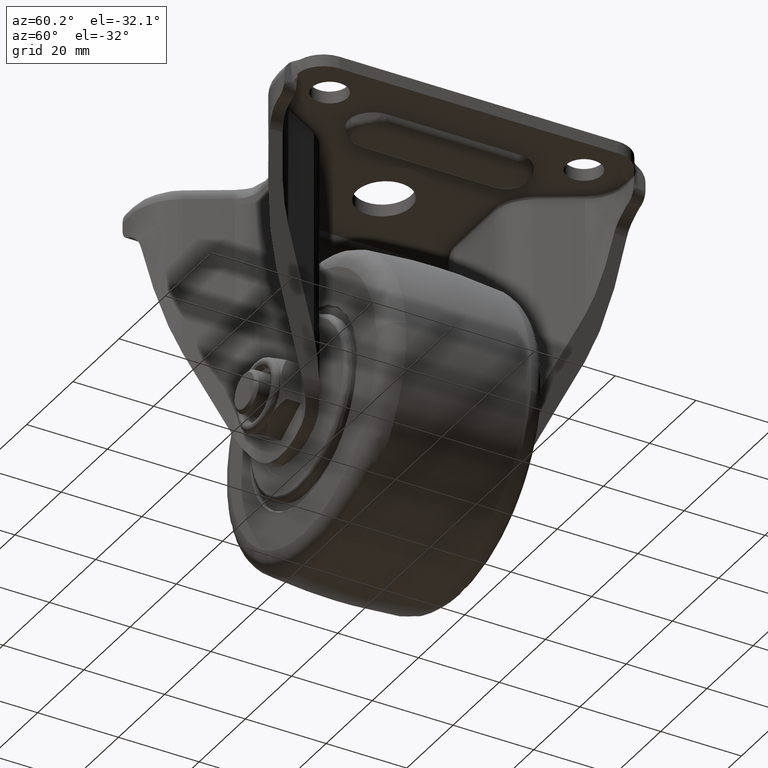
[diagram: clean part render]
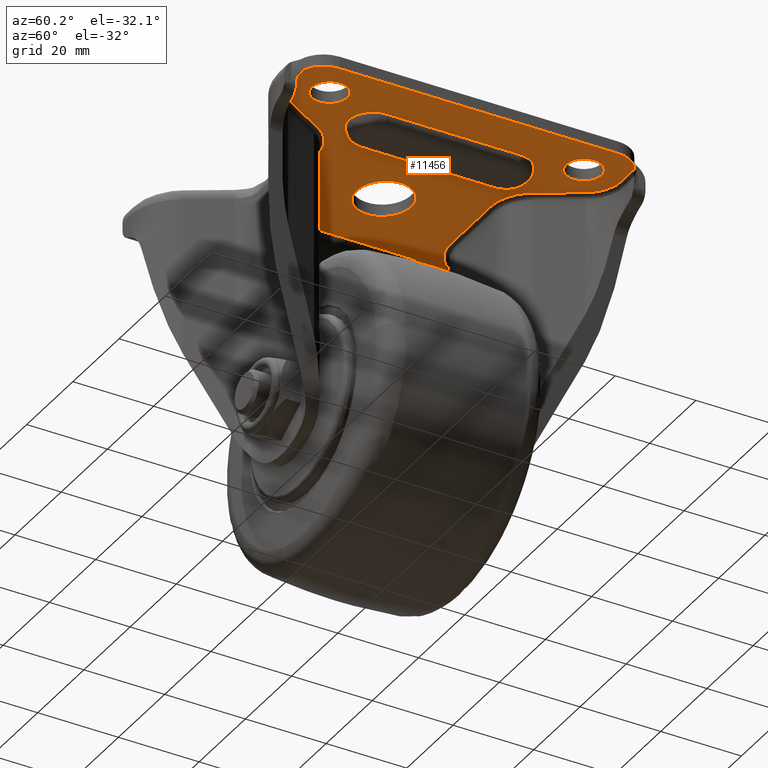
[diagram: same view with one face highlighted and labeled with its STEP entity id]
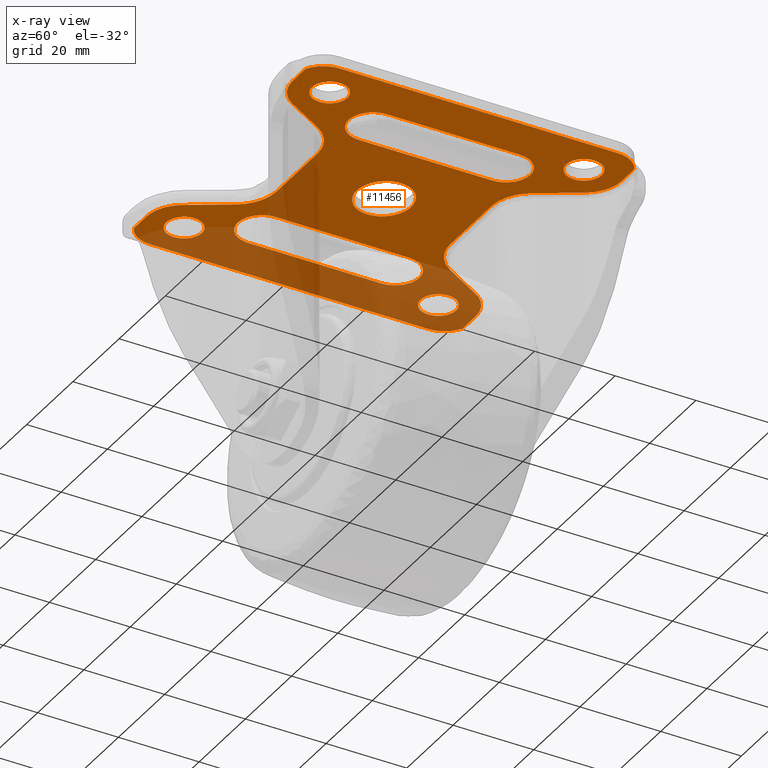
[diagram: x-ray of the same camera — body ghosted, the highlighted face saturated]
A machine part, auxiliary view. The second image highlights one B-rep face of the part: STEP entity #11456.
The next image is the same camera in x-ray: the body ghosted, the highlighted face saturated — about 31% of this face is hidden behind the body in this view.
In plain terms, the highlighted face is a freeform B-spline surface patch.
Its self-contained STEP definition (entity closure, byte-faithful):
#5930=CARTESIAN_POINT('',(-34.691647000607233,28.471240123626352,59.500003000026211));
#5931=VERTEX_POINT('',#5930);
#5932=CARTESIAN_POINT('',(-31.499998218110839,27.099999900000359,59.500002999999801));
#5933=VERTEX_POINT('',#5932);
#5934=CARTESIAN_POINT('',(-34.691647000607233,28.471240123626352,59.500003000026211));
#5935=CARTESIAN_POINT('',(-34.358976060842743,28.120207830145930,59.500003000023533));
#5936=CARTESIAN_POINT('',(-33.726784138310002,27.643583857209151,59.500003000018168));
#5937=CARTESIAN_POINT('',(-32.615845324090287,27.199311114916810,59.500003000009052));
#5938=CARTESIAN_POINT('',(-31.909186831465291,27.099864361190178,59.500003000003289));
#5939=CARTESIAN_POINT('',(-31.499998218110839,27.099999900000359,59.500002999999801));
#5940=B_SPLINE_CURVE_WITH_KNOTS('',3,(#5934,#5935,#5936,#5937,#5938,#5939),.UNSPECIFIED.,.F.,.U.,(4,1,1,4),(0.000000090492266,1.450763301206250,2.343479457549159,3.571041039129106),.UNSPECIFIED.);
#5941=EDGE_CURVE('',#5931,#5933,#5940,.T.);
#5984=CARTESIAN_POINT('',(-28.308352999392770,34.528759876373663,59.500003000026211));
#5985=VERTEX_POINT('',#5984);
#5991=CARTESIAN_POINT('',(-27.099999900000000,31.500000000000000,59.500002999999801));
#5992=VERTEX_POINT('',#5991);
#5993=CARTESIAN_POINT('',(-27.099999900000000,31.500000000000000,59.500002999999801));
#5994=CARTESIAN_POINT('',(-27.099263999610699,32.091676708761867,59.500003000004909));
#5995=CARTESIAN_POINT('',(-27.328306400692639,33.204506692798716,59.500003000014807));
#5996=CARTESIAN_POINT('',(-27.948706098227259,34.150385877562648,59.500003000022872));
#5997=CARTESIAN_POINT('',(-28.308352999392770,34.528759876373663,59.500003000026211));
#5998=B_SPLINE_CURVE_WITH_KNOTS('',3,(#5993,#5994,#5995,#5996,#5997),.UNSPECIFIED.,.F.,.U.,(4,1,4),(0.000000092965059,1.774690095748479,3.340638401829345),.UNSPECIFIED.);
#5999=EDGE_CURVE('',#5992,#5985,#5998,.T.);
#6001=CARTESIAN_POINT('',(-31.499998218110839,27.099999900000359,59.500002999999801));
#6002=CARTESIAN_POINT('',(-30.923952353776912,27.099407623161799,59.500002999999850));
#6003=CARTESIAN_POINT('',(-29.952468912740262,27.293654120634521,59.500002999999793));
#6004=CARTESIAN_POINT('',(-28.854129751260039,27.934080075835752,59.500002999999822));
#6005=CARTESIAN_POINT('',(-27.989354541707900,28.756976651965310,59.500002999999580));
#6006=CARTESIAN_POINT('',(-27.294574970466051,29.916345901955101,59.500003000000312));
#6007=CARTESIAN_POINT('',(-27.099577915812208,30.959983553573231,59.500002999999658));
#6008=CARTESIAN_POINT('',(-27.099999900000000,31.500000000000000,59.500002999999801));
#6009=B_SPLINE_CURVE_WITH_KNOTS('',3,(#6001,#6002,#6003,#6004,#6005,#6006,#6007,#6008),.UNSPECIFIED.,.F.,.U.,(4,1,1,1,1,4),(0.000000241739937,1.727920623989209,2.915920951678448,3.779762683648502,5.291754292102114,6.911676427838033),.UNSPECIFIED.);
#6010=EDGE_CURVE('',#5933,#5992,#6009,.T.);
#6033=CARTESIAN_POINT('',(-35.900000099999993,31.500000000000000,59.500002999999801));
#6034=VERTEX_POINT('',#6033);
#6035=CARTESIAN_POINT('',(-35.900000099999993,31.500000000000000,59.500002999999801));
#6036=CARTESIAN_POINT('',(-35.900205301982403,31.047597290408110,59.500003000003737));
#6037=CARTESIAN_POINT('',(-35.786284948147163,30.316996199185919,59.500003000010182));
#6038=CARTESIAN_POINT('',(-35.347184863635157,29.288218447143191,59.500003000019042));
#6039=CARTESIAN_POINT('',(-34.955232262968273,28.748817224833591,59.500003000023803));
#6040=CARTESIAN_POINT('',(-34.691647000607233,28.471240123626352,59.500003000026211));
#6041=B_SPLINE_CURVE_WITH_KNOTS('',3,(#6035,#6036,#6037,#6038,#6039,#6040),.UNSPECIFIED.,.F.,.U.,(4,1,1,4),(0.000000092964575,1.357161706003643,2.192290139790077,3.340638401829333),.UNSPECIFIED.);
#6042=EDGE_CURVE('',#6034,#5931,#6041,.T.);
#6044=CARTESIAN_POINT('',(-31.500001781889139,35.900000099999637,59.500002999999801));
#6045=VERTEX_POINT('',#6044);
#6046=CARTESIAN_POINT('',(-31.500001781889139,35.900000099999637,59.500002999999801));
#6047=CARTESIAN_POINT('',(-32.003987331218539,35.900329681967150,59.500002999999751));
#6048=CARTESIAN_POINT('',(-32.903765383793463,35.743684865699443,59.500002999999921));
#6049=CARTESIAN_POINT('',(-33.967743797823573,35.191486700231032,59.500002999999687));
#6050=CARTESIAN_POINT('',(-34.762039559061137,34.506309033754597,59.500003000000063));
#6051=CARTESIAN_POINT('',(-35.367051465237822,33.690675906191487,59.500002999999552));
#6052=CARTESIAN_POINT('',(-35.797260383090268,32.651852591965138,59.500002999999680));
#6053=CARTESIAN_POINT('',(-35.900119801532369,31.895975730859259,59.500002999999907));
#6054=CARTESIAN_POINT('',(-35.900000099999993,31.500000000000000,59.500002999999801));
#6055=B_SPLINE_CURVE_WITH_KNOTS('',3,(#6046,#6047,#6048,#6049,#6050,#6051,#6052,#6053,#6054),.UNSPECIFIED.,.F.,.U.,(4,1,1,1,1,1,4),(0.000000241744997,1.511931141149818,2.699913962412099,3.563803779662665,4.643757950747220,5.723756886239525,6.911676427838042),.UNSPECIFIED.);
#6056=EDGE_CURVE('',#6045,#6034,#6055,.T.);
#6058=CARTESIAN_POINT('',(-28.308352999392770,34.528759876373663,59.500003000026211));
#6059=CARTESIAN_POINT('',(-28.538756498969839,34.771640482711298,59.500003000024329));
#6060=CARTESIAN_POINT('',(-29.026666925610002,35.180348132001981,59.500003000020172));
#6061=CARTESIAN_POINT('',(-30.086845631831491,35.734955299414452,59.500003000011652));
#6062=CARTESIAN_POINT('',(-30.941934174602700,35.900583440342182,59.500003000004433));
#6063=CARTESIAN_POINT('',(-31.500001781889139,35.900000099999637,59.500002999999801));
#6064=B_SPLINE_CURVE_WITH_KNOTS('',3,(#6058,#6059,#6060,#6061,#6062,#6063),.UNSPECIFIED.,.F.,.U.,(4,1,1,4),(0.000000090492044,1.004357267388166,1.897097622033398,3.571041039129084),.UNSPECIFIED.);
#6065=EDGE_CURVE('',#5985,#6045,#6064,.T.);
#6123=CARTESIAN_POINT('',(-34.691647000607233,-34.528759876373648,59.500003000026211));
#6124=VERTEX_POINT('',#6123);
#6125=CARTESIAN_POINT('',(-31.499998218110839,-35.900000099999630,59.500002999999801));
#6126=VERTEX_POINT('',#6125);
#6127=CARTESIAN_POINT('',(-34.691647000607233,-34.528759876373648,59.500003000026211));
#6128=CARTESIAN_POINT('',(-34.461243508299731,-34.771640486092011,59.500003000024201));
#6129=CARTESIAN_POINT('',(-33.973333068592552,-35.180348143102272,59.500003000020612));
#6130=CARTESIAN_POINT('',(-32.913154264671562,-35.734955202787212,59.500003000011262));
#6131=CARTESIAN_POINT('',(-32.058066117621600,-35.900583614213069,59.500003000004362));
#6132=CARTESIAN_POINT('',(-31.499998218110839,-35.900000099999630,59.500002999999801));
#6133=B_SPLINE_CURVE_WITH_KNOTS('',3,(#6127,#6128,#6129,#6130,#6131,#6132),.UNSPECIFIED.,.F.,.U.,(4,1,1,4),(0.000000090492279,1.004357267388389,1.897097622033581,3.571041039129110),.UNSPECIFIED.);
#6134=EDGE_CURVE('',#6124,#6126,#6133,.T.);
#6177=CARTESIAN_POINT('',(-28.308352999392770,-28.471240123626352,59.500003000026211));
#6178=VERTEX_POINT('',#6177);
#6184=CARTESIAN_POINT('',(-27.099999900000000,-31.500000000000000,59.500002999999801));
#6185=VERTEX_POINT('',#6184);
#6186=CARTESIAN_POINT('',(-27.099999900000000,-31.500000000000000,59.500002999999801));
#6187=CARTESIAN_POINT('',(-27.099349275943890,-30.908350144992252,59.500003000004973));
#6188=CARTESIAN_POINT('',(-27.328210940443551,-29.795455331844781,59.500003000014637));
#6189=CARTESIAN_POINT('',(-27.948728475319069,-28.849625174872749,59.500003000022978));
#6190=CARTESIAN_POINT('',(-28.308352999392770,-28.471240123626352,59.500003000026211));
#6191=B_SPLINE_CURVE_WITH_KNOTS('',3,(#6186,#6187,#6188,#6189,#6190),.UNSPECIFIED.,.F.,.U.,(4,1,4),(0.000000092965303,1.774690095748631,3.340638401829333),.UNSPECIFIED.);
#6192=EDGE_CURVE('',#6185,#6178,#6191,.T.);
#6194=CARTESIAN_POINT('',(-31.499998218110839,-35.900000099999630,59.500002999999801));
#6195=CARTESIAN_POINT('',(-30.995972664046359,-35.900379351679057,59.500002999999651));
#6196=CARTESIAN_POINT('',(-30.204319490234830,-35.762346983446868,59.500003000000042));
#6197=CARTESIAN_POINT('',(-29.059768588670511,-35.221137978074033,59.500002999999602));
#6198=CARTESIAN_POINT('',(-28.250810624712869,-34.540554558395222,59.500003000000163));
#6199=CARTESIAN_POINT('',(-27.646966226188489,-33.682731071026737,59.500002999999239));
#6200=CARTESIAN_POINT('',(-27.221821212508079,-32.723756745486263,59.500003000000213));
#6201=CARTESIAN_POINT('',(-27.099706265807239,-31.968005389273021,59.500002999999722));
#6202=CARTESIAN_POINT('',(-27.099999900000000,-31.500000000000000,59.500002999999801));
#6203=B_SPLINE_CURVE_WITH_KNOTS('',3,(#6194,#6195,#6196,#6197,#6198,#6199,#6200,#6201,#6202),.UNSPECIFIED.,.F.,.U.,(4,1,1,1,1,1,4),(0.000000241738357,1.511931141144403,2.375895122608377,3.779762683647913,4.643757950745846,5.507757878330005,6.911676427838032),.UNSPECIFIED.);
#6204=EDGE_CURVE('',#6126,#6185,#6203,.T.);
#6227=CARTESIAN_POINT('',(-35.900000099999993,-31.500000000000000,59.500002999999801));
#6228=VERTEX_POINT('',#6227);
#6229=CARTESIAN_POINT('',(-35.900000099999993,-31.500000000000000,59.500002999999801));
#6230=CARTESIAN_POINT('',(-35.900703962728919,-32.091654449976993,59.500003000005023));
#6231=CARTESIAN_POINT('',(-35.671764936728017,-33.204557243505917,59.500003000014587));
#6232=CARTESIAN_POINT('',(-35.051252128284688,-34.150355498037527,59.500003000022957));
#6233=CARTESIAN_POINT('',(-34.691647000607233,-34.528759876373648,59.500003000026211));
#6234=B_SPLINE_CURVE_WITH_KNOTS('',3,(#6229,#6230,#6231,#6232,#6233),.UNSPECIFIED.,.F.,.U.,(4,1,4),(0.000000092964686,1.774690095748357,3.340638401829322),.UNSPECIFIED.);
#6235=EDGE_CURVE('',#6228,#6124,#6234,.T.);
#6237=CARTESIAN_POINT('',(-31.500001781889129,-27.099999900000359,59.500002999999793));
#6238=VERTEX_POINT('',#6237);
#6239=CARTESIAN_POINT('',(-31.500001781889129,-27.099999900000359,59.500002999999793));
#6240=CARTESIAN_POINT('',(-31.895982430255138,-27.099867569601841,59.500002999999822));
#6241=CARTESIAN_POINT('',(-32.543853971470647,-27.188096753210690,59.500002999999907));
#6242=CARTESIAN_POINT('',(-33.458287799074490,-27.527982413348219,59.500002999999637));
#6243=CARTESIAN_POINT('',(-34.198289614423743,-27.983956704431240,59.500003000000142));
#6244=CARTESIAN_POINT('',(-34.905609075021573,-28.657377059544519,59.500002999999573));
#6245=CARTESIAN_POINT('',(-35.469889234262702,-29.501694508550649,59.500002999999808));
#6246=CARTESIAN_POINT('',(-35.824144435747733,-30.492094129558762,59.500002999999701));
#6247=CARTESIAN_POINT('',(-35.900053317971029,-31.176021110374322,59.500002999999822));
#6248=CARTESIAN_POINT('',(-35.900000099999993,-31.500000000000000,59.500002999999801));
#6249=B_SPLINE_CURVE_WITH_KNOTS('',3,(#6239,#6240,#6241,#6242,#6243,#6244,#6245,#6246,#6247,#6248),.UNSPECIFIED.,.F.,.U.,(4,1,1,1,1,1,1,4),(0.000000241744677,1.187923698152587,1.943921647224812,2.915920951680283,3.779762683649653,4.859756957711847,5.939731549488777,6.911676427838050),.UNSPECIFIED.);
#6250=EDGE_CURVE('',#6238,#6228,#6249,.T.);
#6252=CARTESIAN_POINT('',(-28.308352999392770,-28.471240123626352,59.500003000026211));
#6253=CARTESIAN_POINT('',(-28.538753036546929,-28.228351790306409,59.500003000024350));
#6254=CARTESIAN_POINT('',(-29.026670699868781,-27.819673236377970,59.500003000020222));
#6255=CARTESIAN_POINT('',(-30.086845111323932,-27.265025626112330,59.500003000011453));
#6256=CARTESIAN_POINT('',(-30.941933366365468,-27.099425289684021,59.500003000004497));
#6257=CARTESIAN_POINT('',(-31.500001781889129,-27.099999900000359,59.500002999999793));
#6258=B_SPLINE_CURVE_WITH_KNOTS('',3,(#6252,#6253,#6254,#6255,#6256,#6257),.UNSPECIFIED.,.F.,.U.,(4,1,1,4),(0.000000090493190,1.004357267388908,1.897097622033716,3.571041039129073),.UNSPECIFIED.);
#6259=EDGE_CURVE('',#6178,#6238,#6258,.T.);
#6318=CARTESIAN_POINT('',(28.308352999392770,-34.528759876373663,59.500003000026211));
#6319=VERTEX_POINT('',#6318);
#6320=CARTESIAN_POINT('',(31.500001781889150,-35.900000099999637,59.500002999999801));
#6321=VERTEX_POINT('',#6320);
#6322=CARTESIAN_POINT('',(28.308352999392770,-34.528759876373663,59.500003000026211));
#6323=CARTESIAN_POINT('',(28.692086240851872,-34.933974152291583,59.500003000023092));
#6324=CARTESIAN_POINT('',(29.339174464309220,-35.396172590290810,59.500003000017642));
#6325=CARTESIAN_POINT('',(30.458567621719780,-35.811106866696193,59.500003000008483));
#6326=CARTESIAN_POINT('',(31.090803979907850,-35.900149181098861,59.500003000003197));
#6327=CARTESIAN_POINT('',(31.500001781889150,-35.900000099999637,59.500002999999801));
#6328=B_SPLINE_CURVE_WITH_KNOTS('',3,(#6322,#6323,#6324,#6325,#6326,#6327),.UNSPECIFIED.,.F.,.U.,(4,1,1,4),(0.000000090492720,1.673943507615887,2.343479457549450,3.571041039129096),.UNSPECIFIED.);
#6329=EDGE_CURVE('',#6319,#6321,#6328,.T.);
#6373=CARTESIAN_POINT('',(34.691647000607233,-28.471240123626352,59.500003000026211));
#6374=VERTEX_POINT('',#6373);
#6380=CARTESIAN_POINT('',(35.900000100000000,-31.500000000000000,59.500002999999801));
#6381=VERTEX_POINT('',#6380);
#6382=CARTESIAN_POINT('',(35.900000100000000,-31.500000000000000,59.500002999999801));
#6383=CARTESIAN_POINT('',(35.900726186080320,-30.908334212780922,59.500003000004810));
#6384=CARTESIAN_POINT('',(35.671702104240467,-29.795478254488231,59.500003000014956));
#6385=CARTESIAN_POINT('',(35.051292665760258,-28.849620109964128,59.500003000022737));
#6386=CARTESIAN_POINT('',(34.691647000607233,-28.471240123626352,59.500003000026211));
#6387=B_SPLINE_CURVE_WITH_KNOTS('',3,(#6382,#6383,#6384,#6385,#6386),.UNSPECIFIED.,.F.,.U.,(4,1,4),(0.000000092963444,1.774690095748037,3.340638401829342),.UNSPECIFIED.);
#6388=EDGE_CURVE('',#6381,#6374,#6387,.T.);
#6390=CARTESIAN_POINT('',(31.500001781889150,-35.900000099999637,59.500002999999801));
#6391=CARTESIAN_POINT('',(32.004011913025799,-35.900321039644169,59.500002999999779));
#6392=CARTESIAN_POINT('',(32.795702889427680,-35.762402733436147,59.500002999999808));
#6393=CARTESIAN_POINT('',(33.940200086968552,-35.221129390546288,59.500002999999758));
#6394=CARTESIAN_POINT('',(34.860856043893691,-34.446673337583057,59.500002999999808));
#6395=CARTESIAN_POINT('',(35.678474597864728,-33.155308497667377,59.500002999999907));
#6396=CARTESIAN_POINT('',(35.900801348962901,-32.112100626481677,59.500002999999751));
#6397=CARTESIAN_POINT('',(35.900000100000000,-31.500000000000000,59.500002999999801));
#6398=B_SPLINE_CURVE_WITH_KNOTS('',3,(#6390,#6391,#6392,#6393,#6394,#6395,#6396,#6397),.UNSPECIFIED.,.F.,.U.,(4,1,1,1,1,4),(0.000000241740844,1.511931141146056,2.375895122609573,3.779762683648776,5.075760544638878,6.911676427838041),.UNSPECIFIED.);
#6399=EDGE_CURVE('',#6321,#6381,#6398,.T.);
#6422=CARTESIAN_POINT('',(27.099999900000000,-31.500000000000000,59.500002999999801));
#6423=VERTEX_POINT('',#6422);
#6424=CARTESIAN_POINT('',(27.099999900000000,-31.500000000000000,59.500002999999801));
#6425=CARTESIAN_POINT('',(27.099296499681440,-32.091655920797912,59.500003000005059));
#6426=CARTESIAN_POINT('',(27.328235633712911,-33.204556436820340,59.500003000014537));
#6427=CARTESIAN_POINT('',(27.948747318464171,-34.150355772238953,59.500003000022957));
#6428=CARTESIAN_POINT('',(28.308352999392770,-34.528759876373663,59.500003000026211));
#6429=B_SPLINE_CURVE_WITH_KNOTS('',3,(#6424,#6425,#6426,#6427,#6428),.UNSPECIFIED.,.F.,.U.,(4,1,4),(0.000000092965430,1.774690095748572,3.340638401829343),.UNSPECIFIED.);
#6430=EDGE_CURVE('',#6423,#6319,#6429,.T.);
#6432=CARTESIAN_POINT('',(31.499998218110871,-27.099999900000359,59.500002999999801));
#6433=VERTEX_POINT('',#6432);
#6434=CARTESIAN_POINT('',(31.499998218110871,-27.099999900000359,59.500002999999801));
#6435=CARTESIAN_POINT('',(30.995985751894501,-27.099643778567771,59.500002999999808));
#6436=CARTESIAN_POINT('',(30.024279831308881,-27.268866528009021,59.500002999999737));
#6437=CARTESIAN_POINT('',(28.906366639133619,-27.883966803534719,59.500003000000028));
#6438=CARTESIAN_POINT('',(28.146832537174920,-28.607548205583779,59.500002999999332));
#6439=CARTESIAN_POINT('',(27.646956809302441,-29.317241433387760,59.500003000000582));
#6440=CARTESIAN_POINT('',(27.221762622085510,-30.276229831805889,59.500002999999140));
#6441=CARTESIAN_POINT('',(27.099764222476960,-31.032005702600529,59.500003000000042));
#6442=CARTESIAN_POINT('',(27.099999900000000,-31.500000000000000,59.500002999999801));
#6443=B_SPLINE_CURVE_WITH_KNOTS('',3,(#6434,#6435,#6436,#6437,#6438,#6439,#6440,#6441,#6442),.UNSPECIFIED.,.F.,.U.,(4,1,1,1,1,1,4),(0.000000241741762,1.511931141147227,2.915920951679352,3.779762683649238,4.643757950746684,5.507757878330457,6.911676427838049),.UNSPECIFIED.);
#6444=EDGE_CURVE('',#6433,#6423,#6443,.T.);
#6446=CARTESIAN_POINT('',(34.691647000607233,-28.471240123626352,59.500003000026211));
#6447=CARTESIAN_POINT('',(34.461246058313577,-28.228349381363302,59.500003000024371));
#6448=CARTESIAN_POINT('',(33.973328729595003,-27.819674202067631,59.500003000020143));
#6449=CARTESIAN_POINT('',(32.913154784199079,-27.265025098634990,59.500003000011610));
#6450=CARTESIAN_POINT('',(32.058067612948392,-27.099425406385141,59.500003000004313));
#6451=CARTESIAN_POINT('',(31.499998218110871,-27.099999900000359,59.500002999999801));
#6452=B_SPLINE_CURVE_WITH_KNOTS('',3,(#6446,#6447,#6448,#6449,#6450,#6451),.UNSPECIFIED.,.F.,.U.,(4,1,1,4),(0.000000090493518,1.004357267389062,1.897097622033716,3.571041039129080),.UNSPECIFIED.);
#6453=EDGE_CURVE('',#6374,#6433,#6452,.T.);
#6511=CARTESIAN_POINT('',(28.308352999392770,28.471240123626352,59.500003000026211));
#6512=VERTEX_POINT('',#6511);
#6513=CARTESIAN_POINT('',(31.500001781889150,27.099999900000359,59.500002999999801));
#6514=VERTEX_POINT('',#6513);
#6515=CARTESIAN_POINT('',(28.308352999392770,28.471240123626352,59.500003000026211));
#6516=CARTESIAN_POINT('',(28.641023903309790,28.120207886855979,59.500003000023412));
#6517=CARTESIAN_POINT('',(29.273215929515469,27.643583854376921,59.500003000018303));
#6518=CARTESIAN_POINT('',(30.384154555606429,27.199311087895051,59.500003000009023));
#6519=CARTESIAN_POINT('',(31.090813230534991,27.099864417365168,59.500003000003169));
#6520=CARTESIAN_POINT('',(31.500001781889150,27.099999900000359,59.500002999999801));
#6521=B_SPLINE_CURVE_WITH_KNOTS('',3,(#6515,#6516,#6517,#6518,#6519,#6520),.UNSPECIFIED.,.F.,.U.,(4,1,1,4),(0.000000090494230,1.450763301207437,2.343479457549551,3.571041039129093),.UNSPECIFIED.);
#6522=EDGE_CURVE('',#6512,#6514,#6521,.T.);
#6566=CARTESIAN_POINT('',(34.691647000607233,34.528759876373663,59.500003000026211));
#6567=VERTEX_POINT('',#6566);
#6573=CARTESIAN_POINT('',(35.900000100000000,31.500000000000000,59.500002999999801));
#6574=VERTEX_POINT('',#6573);
#6575=CARTESIAN_POINT('',(35.900000100000000,31.500000000000000,59.500002999999801));
#6576=CARTESIAN_POINT('',(35.900651686812147,32.091650288536968,59.500003000004938));
#6577=CARTESIAN_POINT('',(35.671787673932947,33.204544151479027,59.500003000014701));
#6578=CARTESIAN_POINT('',(35.051271528972592,34.150376833515779,59.500003000022851));
#6579=CARTESIAN_POINT('',(34.691647000607233,34.528759876373663,59.500003000026211));
#6580=B_SPLINE_CURVE_WITH_KNOTS('',3,(#6575,#6576,#6577,#6578,#6579),.UNSPECIFIED.,.F.,.U.,(4,1,4),(0.000000092963875,1.774690095748377,3.340638401829339),.UNSPECIFIED.);
#6581=EDGE_CURVE('',#6574,#6567,#6580,.T.);
#6583=CARTESIAN_POINT('',(31.500001781889150,27.099999900000359,59.500002999999801));
#6584=CARTESIAN_POINT('',(32.004026384328043,27.099624413908810,59.500002999999822));
#6585=CARTESIAN_POINT('',(32.795699040948492,27.237627062331779,59.500002999999822));
#6586=CARTESIAN_POINT('',(33.743948033915949,27.686227926332421,59.500002999999793));
#6587=CARTESIAN_POINT('',(34.476028806013858,28.215316924806832,59.500002999999708));
#6588=CARTESIAN_POINT('',(35.084918649205243,28.887140133017670,59.500003000000042));
#6589=CARTESIAN_POINT('',(35.709112710712127,29.988647774351641,59.500002999999630));
#6590=CARTESIAN_POINT('',(35.900801819260238,30.887876291510018,59.500002999999907));
#6591=CARTESIAN_POINT('',(35.900000100000000,31.500000000000000,59.500002999999801));
#6592=B_SPLINE_CURVE_WITH_KNOTS('',3,(#6583,#6584,#6585,#6586,#6587,#6588,#6589,#6590,#6591),.UNSPECIFIED.,.F.,.U.,(4,1,1,1,1,1,4),(0.000000241741255,1.511931141146735,2.375895122610275,3.131907494603060,4.211773052936596,5.075760544639027,6.911676427838041),.UNSPECIFIED.);
#6593=EDGE_CURVE('',#6514,#6574,#6592,.T.);
#6616=CARTESIAN_POINT('',(27.099999900000000,31.500000000000000,59.500002999999801));
#6617=VERTEX_POINT('',#6616);
#6618=CARTESIAN_POINT('',(27.099999900000000,31.500000000000000,59.500002999999801));
#6619=CARTESIAN_POINT('',(27.099340282523741,30.908348415618619,59.500003000004980));
#6620=CARTESIAN_POINT('',(27.328221403770179,29.795454912681869,59.500003000014686));
#6621=CARTESIAN_POINT('',(27.948723524175641,28.849625361276889,59.500003000022858));
#6622=CARTESIAN_POINT('',(28.308352999392770,28.471240123626352,59.500003000026211));
#6623=B_SPLINE_CURVE_WITH_KNOTS('',3,(#6618,#6619,#6620,#6621,#6622),.UNSPECIFIED.,.F.,.U.,(4,1,4),(0.000000092963835,1.774690095748121,3.340638401829345),.UNSPECIFIED.);
#6624=EDGE_CURVE('',#6617,#6512,#6623,.T.);
#6626=CARTESIAN_POINT('',(31.499998218110871,35.900000099999637,59.500002999999801));
#6627=VERTEX_POINT('',#6626);
#6628=CARTESIAN_POINT('',(31.499998218110871,35.900000099999637,59.500002999999801));
#6629=CARTESIAN_POINT('',(31.176041785539649,35.900036423125663,59.500002999999793));
#6630=CARTESIAN_POINT('',(30.456056288842412,35.820217736974058,59.500002999999850));
#6631=CARTESIAN_POINT('',(29.536716072502539,35.478500545096331,59.500002999999680));
#6632=CARTESIAN_POINT('',(28.749339001689052,34.966120497379251,59.500002999999900));
#6633=CARTESIAN_POINT('',(28.146799627348720,34.392498974362027,59.500002999999751));
#6634=CARTESIAN_POINT('',(27.646959456184380,33.682756173952832,59.500002999999822));
#6635=CARTESIAN_POINT('',(27.221761742125530,32.723771624248840,59.500002999999793));
#6636=CARTESIAN_POINT('',(27.099762511431969,31.967995877937909,59.500002999999808));
#6637=CARTESIAN_POINT('',(27.099999900000000,31.500000000000000,59.500002999999801));
#6638=B_SPLINE_CURVE_WITH_KNOTS('',3,(#6628,#6629,#6630,#6631,#6632,#6633,#6634,#6635,#6636,#6637),.UNSPECIFIED.,.F.,.U.,(4,1,1,1,1,1,1,4),(0.000000241745743,0.971919286445131,2.159918180968012,2.915920951680923,3.779762683650185,4.643757950747105,5.507757878330514,6.911676427838053),.UNSPECIFIED.);
#6639=EDGE_CURVE('',#6627,#6617,#6638,.T.);
#6641=CARTESIAN_POINT('',(34.691647000607233,34.528759876373663,59.500003000026211));
#6642=CARTESIAN_POINT('',(34.410081178868879,34.825681080374217,59.500003000024002));
#6643=CARTESIAN_POINT('',(33.910292293334003,35.223004182539228,59.500003000019582));
#6644=CARTESIAN_POINT('',(32.838765025076547,35.749351307998523,59.500003000011063));
#6645=CARTESIAN_POINT('',(32.058079442846932,35.900583105266577,59.500003000004391));
#6646=CARTESIAN_POINT('',(31.499998218110871,35.900000099999637,59.500002999999801));
#6647=B_SPLINE_CURVE_WITH_KNOTS('',3,(#6641,#6642,#6643,#6644,#6645,#6646),.UNSPECIFIED.,.F.,.U.,(4,1,1,4),(0.000000090492639,1.227561671989897,1.897097622033578,3.571041039129076),.UNSPECIFIED.);
#6648=EDGE_CURVE('',#6567,#6627,#6647,.T.);
#7642=CARTESIAN_POINT('',(30.0,-16.500000000000000,59.500000000000000));
#7643=VERTEX_POINT('',#7642);
#7656=CARTESIAN_POINT('',(24.000001527538970,-22.499999999999812,59.500000000000000));
#7657=VERTEX_POINT('',#7656);
#7658=CARTESIAN_POINT('',(24.000001527538970,-22.499999999999812,59.500000000000000));
#7659=CARTESIAN_POINT('',(24.638181710563099,-22.500337391961452,59.500000000000092));
#7660=CARTESIAN_POINT('',(25.668791860867579,-22.333958344950080,59.499999999999972));
#7661=CARTESIAN_POINT('',(26.886259478478920,-21.794110039788471,59.499999999999957));
#7662=CARTESIAN_POINT('',(27.786584388175580,-21.192504907664709,59.499999999999972));
#7663=CARTESIAN_POINT('',(28.715666008257951,-20.308404676295989,59.500000000000000));
#7664=CARTESIAN_POINT('',(29.432312763295581,-19.176471825410331,59.500000000000007));
#7665=CARTESIAN_POINT('',(29.896975849685571,-17.825292605927370,59.499999999999993));
#7666=CARTESIAN_POINT('',(30.000123003978430,-16.990882208556972,59.500000000000043));
#7667=CARTESIAN_POINT('',(30.0,-16.500000000000000,59.500000000000000));
#7668=B_SPLINE_CURVE_WITH_KNOTS('',3,(#7658,#7659,#7660,#7661,#7662,#7663,#7664,#7665,#7666,#7667),.UNSPECIFIED.,.F.,.U.,(4,1,1,1,1,1,1,4),(0.000000118131149,1.914455735805332,3.092591270815547,3.976196882276141,5.154288921986326,6.921494106595872,7.952363739313801,9.425013605039473),.UNSPECIFIED.);
#7669=EDGE_CURVE('',#7657,#7643,#7668,.T.);
#7671=CARTESIAN_POINT('',(18.0,-16.500000000000000,59.500000000000000));
#7672=VERTEX_POINT('',#7671);
#7673=CARTESIAN_POINT('',(18.0,-16.500000000000000,59.500000000000000));
#7674=CARTESIAN_POINT('',(17.999821559797500,-17.039980641266599,59.499999999999993));
#7675=CARTESIAN_POINT('',(18.140108649029830,-18.070721531437179,59.499999999999993));
#7676=CARTESIAN_POINT('',(18.651092790414729,-19.304450921697029,59.499999999999993));
#7677=CARTESIAN_POINT('',(19.307485245125861,-20.286621958214401,59.500000000000050));
#7678=CARTESIAN_POINT('',(20.055687739397129,-21.072543639511260,59.499999999999922));
#7679=CARTESIAN_POINT('',(21.023541130209999,-21.754171807692479,59.500000000000028));
#7680=CARTESIAN_POINT('',(22.331225553267071,-22.333929043839831,59.500000000000192));
#7681=CARTESIAN_POINT('',(23.361816644573679,-22.500348698045439,59.499999999999673));
#7682=CARTESIAN_POINT('',(24.000001527538970,-22.499999999999812,59.500000000000000));
#7683=B_SPLINE_CURVE_WITH_KNOTS('',3,(#7673,#7674,#7675,#7676,#7677,#7678,#7679,#7680,#7681,#7682),.UNSPECIFIED.,.F.,.U.,(4,1,1,1,1,1,1,4),(0.000000116043770,1.619923144787121,3.092591834832684,3.976197608890227,5.154289865825507,6.332425946956693,7.510561580039540,9.425015326974856),.UNSPECIFIED.);
#7684=EDGE_CURVE('',#7672,#7657,#7683,.T.);
#7716=CARTESIAN_POINT('',(18.0,16.500000000000000,59.500000000000000));
#7717=VERTEX_POINT('',#7716);
#7731=CARTESIAN_POINT('',(18.0,16.500000000000000,59.500000000000000));
#7732=CARTESIAN_POINT('',(18.0,-16.500000000000000,59.500000000000000));
#7733=QUASI_UNIFORM_CURVE('',1,(#7731,#7732),.UNSPECIFIED.,.F.,.U.);
#7734=EDGE_CURVE('',#7717,#7672,#7733,.T.);
#7753=CARTESIAN_POINT('',(30.0,16.500000000000000,59.500000000000000));
#7754=VERTEX_POINT('',#7753);
#7767=CARTESIAN_POINT('',(30.0,16.500000000000000,59.500000000000000));
#7768=CARTESIAN_POINT('',(30.0,-16.500000000000000,59.500000000000000));
#7769=QUASI_UNIFORM_CURVE('',1,(#7767,#7768),.UNSPECIFIED.,.F.,.U.);
#7770=EDGE_CURVE('',#7754,#7643,#7769,.T.);
#7831=CARTESIAN_POINT('',(23.999998472461030,22.499999999999812,59.500000000000000));
#7832=VERTEX_POINT('',#7831);
#7833=CARTESIAN_POINT('',(23.999998472461030,22.499999999999812,59.500000000000000));
#7834=CARTESIAN_POINT('',(23.361814847964229,22.500341589689992,59.500000000000000));
#7835=CARTESIAN_POINT('',(22.331215729510820,22.333949270480719,59.500000000000121));
#7836=CARTESIAN_POINT('',(21.113731390486311,21.794121726687351,59.499999999999872));
#7837=CARTESIAN_POINT('',(20.213378798799759,21.192520840689589,59.500000000000028));
#7838=CARTESIAN_POINT('',(19.427447266752541,20.444313320423550,59.500000000000142));
#7839=CARTESIAN_POINT('',(18.745832307960001,19.476467066720161,59.499999999999872));
#7840=CARTESIAN_POINT('',(18.166070835097841,18.168768474056019,59.500000000000078));
#7841=CARTESIAN_POINT('',(17.999650702839091,17.138185939486348,59.499999999999993));
#7842=CARTESIAN_POINT('',(18.0,16.500000000000000,59.500000000000000));
#7843=B_SPLINE_CURVE_WITH_KNOTS('',3,(#7833,#7834,#7835,#7836,#7837,#7838,#7839,#7840,#7841,#7842),.UNSPECIFIED.,.F.,.U.,(4,1,1,1,1,1,1,4),(0.000000118134130,1.914455735807509,3.092591270817410,3.976196882277729,5.154288921987545,6.332424789244184,7.510560207550700,9.425013605039482),.UNSPECIFIED.);
#7844=EDGE_CURVE('',#7832,#7717,#7843,.T.);
#7846=CARTESIAN_POINT('',(30.0,16.500000000000000,59.500000000000000));
#7847=CARTESIAN_POINT('',(30.000382688775609,17.138190358766490,59.499999999999922));
#7848=CARTESIAN_POINT('',(29.833907659738632,18.168773486116500,59.500000000000163));
#7849=CARTESIAN_POINT('',(29.294128503444671,19.386269541821910,59.499999999999837));
#7850=CARTESIAN_POINT('',(28.692522954420010,20.286619756719119,59.500000000000071));
#7851=CARTESIAN_POINT('',(27.944311784079439,21.072554013306579,59.500000000000092));
#7852=CARTESIAN_POINT('',(26.976466951568369,21.754174474625369,59.499999999999943));
#7853=CARTESIAN_POINT('',(25.668761690229658,22.333891761303718,59.499999999999837));
#7854=CARTESIAN_POINT('',(24.638189704378021,22.500389440705678,59.500000000000249));
#7855=CARTESIAN_POINT('',(23.999998472461030,22.499999999999812,59.500000000000000));
#7856=B_SPLINE_CURVE_WITH_KNOTS('',3,(#7846,#7847,#7848,#7849,#7850,#7851,#7852,#7853,#7854,#7855),.UNSPECIFIED.,.F.,.U.,(4,1,1,1,1,1,1,4),(0.000000116042401,1.914456083697620,3.092591834831901,3.976197608889494,5.154289865824901,6.332425946956446,7.510561580039363,9.425015326974860),.UNSPECIFIED.);
#7857=EDGE_CURVE('',#7754,#7832,#7856,.T.);
#7879=CARTESIAN_POINT('',(-18.0,16.500000000000000,59.500000000000000));
#7880=VERTEX_POINT('',#7879);
#7892=CARTESIAN_POINT('',(-18.0,-16.500000000000000,59.500000000000000));
#7893=VERTEX_POINT('',#7892);
#7894=CARTESIAN_POINT('',(-18.0,-16.500000000000000,59.500000000000000));
#7895=CARTESIAN_POINT('',(-18.0,16.500000000000000,59.500000000000000));
#7896=QUASI_UNIFORM_CURVE('',1,(#7894,#7895),.UNSPECIFIED.,.F.,.U.);
#7897=EDGE_CURVE('',#7893,#7880,#7896,.T.);
#7967=CARTESIAN_POINT('',(-30.0,-16.500000000000000,59.500000000000000));
#7968=VERTEX_POINT('',#7967);
#7983=CARTESIAN_POINT('',(-23.999998472461030,-22.499999999999812,59.500000000000000));
#7984=VERTEX_POINT('',#7983);
#7985=CARTESIAN_POINT('',(-23.999998472461030,-22.499999999999812,59.500000000000000));
#7986=CARTESIAN_POINT('',(-23.361814847964229,-22.500341589689992,59.500000000000000));
#7987=CARTESIAN_POINT('',(-22.331215729510820,-22.333949270480719,59.500000000000121));
#7988=CARTESIAN_POINT('',(-21.113731390486311,-21.794121726687351,59.499999999999872));
#7989=CARTESIAN_POINT('',(-20.213378798799759,-21.192520840689589,59.500000000000028));
#7990=CARTESIAN_POINT('',(-19.427447266752541,-20.444313320423550,59.500000000000142));
#7991=CARTESIAN_POINT('',(-18.745832307960001,-19.476467066720161,59.499999999999872));
#7992=CARTESIAN_POINT('',(-18.166070835097841,-18.168768474056019,59.500000000000078));
#7993=CARTESIAN_POINT('',(-17.999650702839091,-17.138185939486348,59.499999999999993));
#7994=CARTESIAN_POINT('',(-18.0,-16.500000000000000,59.500000000000000));
#7995=B_SPLINE_CURVE_WITH_KNOTS('',3,(#7985,#7986,#7987,#7988,#7989,#7990,#7991,#7992,#7993,#7994),.UNSPECIFIED.,.F.,.U.,(4,1,1,1,1,1,1,4),(0.000000118134130,1.914455735807509,3.092591270817410,3.976196882277729,5.154288921987545,6.332424789244184,7.510560207550700,9.425013605039482),.UNSPECIFIED.);
#7996=EDGE_CURVE('',#7984,#7893,#7995,.T.);
#7998=CARTESIAN_POINT('',(-30.0,-16.500000000000000,59.500000000000000));
#7999=CARTESIAN_POINT('',(-30.000382688775609,-17.138190358766490,59.499999999999922));
#8000=CARTESIAN_POINT('',(-29.833907659738632,-18.168773486116500,59.500000000000163));
#8001=CARTESIAN_POINT('',(-29.294128503444671,-19.386269541821910,59.499999999999837));
#8002=CARTESIAN_POINT('',(-28.692522954420010,-20.286619756719119,59.500000000000071));
#8003=CARTESIAN_POINT('',(-27.944311784079439,-21.072554013306579,59.500000000000092));
#8004=CARTESIAN_POINT('',(-26.976466951568369,-21.754174474625369,59.499999999999943));
#8005=CARTESIAN_POINT('',(-25.668761690229658,-22.333891761303718,59.499999999999837));
#8006=CARTESIAN_POINT('',(-24.638189704378021,-22.500389440705678,59.500000000000249));
#8007=CARTESIAN_POINT('',(-23.999998472461030,-22.499999999999812,59.500000000000000));
#8008=B_SPLINE_CURVE_WITH_KNOTS('',3,(#7998,#7999,#8000,#8001,#8002,#8003,#8004,#8005,#8006,#8007),.UNSPECIFIED.,.F.,.U.,(4,1,1,1,1,1,1,4),(0.000000116042401,1.914456083697620,3.092591834831901,3.976197608889494,5.154289865824901,6.332425946956446,7.510561580039363,9.425015326974860),.UNSPECIFIED.);
#8009=EDGE_CURVE('',#7968,#7984,#8008,.T.);
#8067=CARTESIAN_POINT('',(-30.0,16.500000000000000,59.500000000000000));
#8068=VERTEX_POINT('',#8067);
#8081=CARTESIAN_POINT('',(-24.000001527538970,22.499999999999812,59.500000000000000));
#8082=VERTEX_POINT('',#8081);
#8083=CARTESIAN_POINT('',(-24.000001527538970,22.499999999999812,59.500000000000000));
#8084=CARTESIAN_POINT('',(-24.638181710563099,22.500337391961452,59.500000000000092));
#8085=CARTESIAN_POINT('',(-25.668791860867579,22.333958344950080,59.499999999999972));
#8086=CARTESIAN_POINT('',(-26.886259478478920,21.794110039788471,59.499999999999957));
#8087=CARTESIAN_POINT('',(-27.786584388175580,21.192504907664709,59.499999999999972));
#8088=CARTESIAN_POINT('',(-28.715666008257951,20.308404676295989,59.500000000000000));
#8089=CARTESIAN_POINT('',(-29.432312763295581,19.176471825410331,59.500000000000007));
#8090=CARTESIAN_POINT('',(-29.896975849685571,17.825292605927370,59.499999999999993));
#8091=CARTESIAN_POINT('',(-30.000123003978430,16.990882208556972,59.500000000000043));
#8092=CARTESIAN_POINT('',(-30.0,16.500000000000000,59.500000000000000));
#8093=B_SPLINE_CURVE_WITH_KNOTS('',3,(#8083,#8084,#8085,#8086,#8087,#8088,#8089,#8090,#8091,#8092),.UNSPECIFIED.,.F.,.U.,(4,1,1,1,1,1,1,4),(0.000000118131149,1.914455735805332,3.092591270815547,3.976196882276141,5.154288921986326,6.921494106595872,7.952363739313801,9.425013605039473),.UNSPECIFIED.);
#8094=EDGE_CURVE('',#8082,#8068,#8093,.T.);
#8096=CARTESIAN_POINT('',(-18.0,16.500000000000000,59.500000000000000));
#8097=CARTESIAN_POINT('',(-17.999821559797500,17.039980641266599,59.499999999999993));
#8098=CARTESIAN_POINT('',(-18.140108649029830,18.070721531437179,59.499999999999993));
#8099=CARTESIAN_POINT('',(-18.651092790414729,19.304450921697029,59.499999999999993));
#8100=CARTESIAN_POINT('',(-19.307485245125861,20.286621958214401,59.500000000000050));
#8101=CARTESIAN_POINT('',(-20.055687739397129,21.072543639511260,59.499999999999922));
#8102=CARTESIAN_POINT('',(-21.023541130209999,21.754171807692479,59.500000000000028));
#8103=CARTESIAN_POINT('',(-22.331225553267071,22.333929043839831,59.500000000000192));
#8104=CARTESIAN_POINT('',(-23.361816644573679,22.500348698045439,59.499999999999673));
#8105=CARTESIAN_POINT('',(-24.000001527538970,22.499999999999812,59.500000000000000));
#8106=B_SPLINE_CURVE_WITH_KNOTS('',3,(#8096,#8097,#8098,#8099,#8100,#8101,#8102,#8103,#8104,#8105),.UNSPECIFIED.,.F.,.U.,(4,1,1,1,1,1,1,4),(0.000000116043770,1.619923144787121,3.092591834832684,3.976197608890227,5.154289865825507,6.332425946956693,7.510561580039540,9.425015326974856),.UNSPECIFIED.);
#8107=EDGE_CURVE('',#7880,#8082,#8106,.T.);
#8130=CARTESIAN_POINT('',(-30.0,-16.500000000000000,59.500000000000000));
#8131=CARTESIAN_POINT('',(-30.0,16.500000000000000,59.500000000000000));
#8132=QUASI_UNIFORM_CURVE('',1,(#8130,#8131),.UNSPECIFIED.,.F.,.U.);
#8133=EDGE_CURVE('',#7968,#8068,#8132,.T.);
#11102=CARTESIAN_POINT('',(-45.095899841068082,-44.820924842037194,59.500002999999801));
#11103=CARTESIAN_POINT('',(45.095902040479487,-44.820924842037194,59.500002999999801));
#11104=CARTESIAN_POINT('',(-45.095899841068082,44.820927028037552,59.500002999999801));
#11105=CARTESIAN_POINT('',(45.095902040479487,44.820927028037552,59.500002999999801));
#11106=B_SPLINE_SURFACE_WITH_KNOTS('',1,1,((#11102,#11104),(#11103,#11105)),.UNSPECIFIED.,.F.,.F.,.U.,(2,2),(2,2),(0.0,90.191801881547576),(0.0,89.641851870074731),.UNSPECIFIED.);
#11107=CARTESIAN_POINT('',(-23.620823420381850,-36.249939763952952,59.500002999999801));
#11108=VERTEX_POINT('',#11107);
#11109=CARTESIAN_POINT('',(-31.529715012458048,-40.750000000000000,59.500002999999801));
#11110=VERTEX_POINT('',#11109);
#11111=CARTESIAN_POINT('',(-23.620823420381850,-36.249939763952952,59.500002999999801));
#11112=CARTESIAN_POINT('',(-23.949972937075430,-36.804029449908761,59.500002999999829));
#11113=CARTESIAN_POINT('',(-24.665801475030712,-37.762622755574299,59.500002999999808));
#11114=CARTESIAN_POINT('',(-25.957414016985179,-38.931479364942028,59.500002999999772));
#11115=CARTESIAN_POINT('',(-27.562067854299311,-39.932651359000737,59.500002999999879));
#11116=CARTESIAN_POINT('',(-29.447532745656659,-40.598456758065304,59.500002999999857));
#11117=CARTESIAN_POINT('',(-30.885247741468500,-40.750071782932451,59.500002999999779));
#11118=CARTESIAN_POINT('',(-31.529715012458048,-40.750000000000000,59.500002999999801));
#11119=B_SPLINE_CURVE_WITH_KNOTS('',3,(#11111,#11112,#11113,#11114,#11115,#11116,#11117,#11118),.UNSPECIFIED.,.F.,.U.,(4,1,1,1,1,4),(0.000000104100776,1.933433504349090,3.569466012408709,5.205380738159967,7.585063209047021,9.518496609296159),.UNSPECIFIED.);
#11120=EDGE_CURVE('',#11108,#11110,#11119,.T.);
#11121=ORIENTED_EDGE('',*,*,#11120,.T.);
#11122=CARTESIAN_POINT('',(-37.152380053229848,-40.750000000000000,59.500002999999801));
#11123=VERTEX_POINT('',#11122);
#11124=CARTESIAN_POINT('',(-31.529715012458048,-40.750000000000000,59.500002999999801));
#11125=CARTESIAN_POINT('',(-37.152380053229848,-40.750000000000000,59.500002999999801));
#11126=QUASI_UNIFORM_CURVE('',1,(#11124,#11125),.UNSPECIFIED.,.F.,.U.);
#11127=EDGE_CURVE('',#11110,#11123,#11126,.T.);
#11128=ORIENTED_EDGE('',*,*,#11127,.T.);
#11129=CARTESIAN_POINT('',(-40.999999999998302,-34.499995113078100,59.500002999999801));
#11130=VERTEX_POINT('',#11129);
#11131=CARTESIAN_POINT('',(-37.152380053229848,-40.750000000000000,59.500002999999801));
#11132=CARTESIAN_POINT('',(-37.763275767508993,-40.442201683372957,59.500002999999808));
#11133=CARTESIAN_POINT('',(-38.793717712000003,-39.715684826931628,59.500002999999793));
#11134=CARTESIAN_POINT('',(-40.006088843961287,-38.246280222764547,59.500002999999779));
#11135=CARTESIAN_POINT('',(-40.803836850955840,-36.511719892612682,59.500002999999879));
#11136=CARTESIAN_POINT('',(-41.000290944474671,-35.184060341089562,59.500002999999737));
#11137=CARTESIAN_POINT('',(-40.999999999998302,-34.499995113078100,59.500002999999801));
#11138=B_SPLINE_CURVE_WITH_KNOTS('',3,(#11131,#11132,#11133,#11134,#11135,#11136,#11137),.UNSPECIFIED.,.F.,.U.,(4,1,1,1,4),(0.000000152865306,2.052128882185898,3.742156677485530,5.673523381609582,7.725652110931728),.UNSPECIFIED.);
#11139=EDGE_CURVE('',#11123,#11130,#11138,.T.);
#11140=ORIENTED_EDGE('',*,*,#11139,.T.);
#11141=CARTESIAN_POINT('',(-41.0,34.500000000000000,59.500002999999801));
#11142=VERTEX_POINT('',#11141);
#11143=CARTESIAN_POINT('',(-40.999999999998302,-34.499995113078100,59.500002999999801));
#11144=CARTESIAN_POINT('',(-41.0,34.500000000000000,59.500002999999801));
#11145=QUASI_UNIFORM_CURVE('',1,(#11143,#11144),.UNSPECIFIED.,.F.,.U.);
#11146=EDGE_CURVE('',#11130,#11142,#11145,.T.);
#11147=ORIENTED_EDGE('',*,*,#11146,.T.);
#11148=CARTESIAN_POINT('',(-37.152380053229848,40.750000000000000,59.500002999999801));
#11149=VERTEX_POINT('',#11148);
#11150=CARTESIAN_POINT('',(-41.0,34.500000000000000,59.500002999999801));
#11151=CARTESIAN_POINT('',(-41.000552236932378,35.304832903099658,59.500002999999801));
#11152=CARTESIAN_POINT('',(-40.782446000953890,36.551774281749459,59.500003000000000));
#11153=CARTESIAN_POINT('',(-39.973652366547533,38.270784774579333,59.500002999999907));
#11154=CARTESIAN_POINT('',(-38.860250578269422,39.668893659474378,59.500002999998998));
#11155=CARTESIAN_POINT('',(-37.763279295988518,40.442198930000473,59.500003000000312));
#11156=CARTESIAN_POINT('',(-37.152380053229848,40.750000000000000,59.500002999999801));
#11157=B_SPLINE_CURVE_WITH_KNOTS('',3,(#11150,#11151,#11152,#11153,#11154,#11155,#11156),.UNSPECIFIED.,.F.,.U.,(4,1,1,1,4),(0.000000152861260,2.414265999707165,3.742154310212567,5.673519792647325,7.725647223828232),.UNSPECIFIED.);
#11158=EDGE_CURVE('',#11142,#11149,#11157,.T.);
#11159=ORIENTED_EDGE('',*,*,#11158,.T.);
#11160=CARTESIAN_POINT('',(-31.529715012458048,40.750000000000000,59.500002999999801));
#11161=VERTEX_POINT('',#11160);
#11162=CARTESIAN_POINT('',(-37.152380053229848,40.750000000000000,59.500002999999801));
#11163=CARTESIAN_POINT('',(-31.529715012458048,40.750000000000000,59.500002999999801));
#11164=QUASI_UNIFORM_CURVE('',1,(#11162,#11163),.UNSPECIFIED.,.F.,.U.);
#11165=EDGE_CURVE('',#11149,#11161,#11164,.T.);
#11166=ORIENTED_EDGE('',*,*,#11165,.T.);
#11167=CARTESIAN_POINT('',(-23.620823387744451,36.249939709031949,59.500002999999801));
#11168=VERTEX_POINT('',#11167);
#11169=CARTESIAN_POINT('',(-31.529715012458048,40.750000000000000,59.500002999999801));
#11170=CARTESIAN_POINT('',(-30.984398111268501,40.750020157102902,59.500002999999730));
#11171=CARTESIAN_POINT('',(-29.695409022726409,40.635205555174380,59.500002999999893));
#11172=CARTESIAN_POINT('',(-27.881951136984920,40.076102179696299,59.500002999999857));
#11173=CARTESIAN_POINT('',(-26.150277995737511,39.090743341260108,59.500002999999822));
#11174=CARTESIAN_POINT('',(-24.725410033462840,37.842541665533510,59.500002999999850));
#11175=CARTESIAN_POINT('',(-23.949992217348989,36.804014527236120,59.500002999999779));
#11176=CARTESIAN_POINT('',(-23.620823387744451,36.249939709031949,59.500002999999801));
#11177=B_SPLINE_CURVE_WITH_KNOTS('',3,(#11169,#11170,#11171,#11172,#11173,#11174,#11175,#11176),.UNSPECIFIED.,.F.,.U.,(4,1,1,1,1,4),(0.000000104099232,1.635988364979540,3.866902857860418,5.651593919423609,7.585063259958949,9.518496673184991),.UNSPECIFIED.);
#11178=EDGE_CURVE('',#11161,#11168,#11177,.T.);
#11179=ORIENTED_EDGE('',*,*,#11178,.T.);
#11180=CARTESIAN_POINT('',(-17.907601716953550,26.635934736208998,59.500002999999801));
#11181=VERTEX_POINT('',#11180);
#11182=CARTESIAN_POINT('',(-23.620823387744451,36.249939709031949,59.500002999999801));
#11183=CARTESIAN_POINT('',(-17.907601716953550,26.635934736208998,59.500002999999801));
#11184=QUASI_UNIFORM_CURVE('',1,(#11182,#11183),.UNSPECIFIED.,.F.,.U.);
#11185=EDGE_CURVE('',#11168,#11181,#11184,.T.);
#11186=ORIENTED_EDGE('',*,*,#11185,.T.);
#11187=CARTESIAN_POINT('',(-8.881149699124249,21.499996999999901,59.500002999999801));
#11188=VERTEX_POINT('',#11187);
#11189=CARTESIAN_POINT('',(-17.907601716953550,26.635934736208998,59.500002999999801));
#11190=CARTESIAN_POINT('',(-17.618580011471490,26.149529805229200,59.500002999999893));
#11191=CARTESIAN_POINT('',(-16.895986033158501,25.130964059020631,59.500002999999758));
#11192=CARTESIAN_POINT('',(-15.475967295123430,23.737359677859740,59.500002999999843));
#11193=CARTESIAN_POINT('',(-13.708114011677550,22.594549216721870,59.500002999999701));
#11194=CARTESIAN_POINT('',(-11.483680220651429,21.727151647966330,59.500002999999900));
#11195=CARTESIAN_POINT('',(-9.843053926901565,21.499624131899239,59.500002999999481));
#11196=CARTESIAN_POINT('',(-8.881149699124249,21.499996999999901,59.500002999999801));
#11197=B_SPLINE_CURVE_WITH_KNOTS('',3,(#11189,#11190,#11191,#11192,#11193,#11194,#11195,#11196),.UNSPECIFIED.,.F.,.U.,(4,1,1,1,1,4),(0.000000077583508,1.697406152551134,3.734344410885663,5.940933893297221,7.977882277232721,10.863500894123190),.UNSPECIFIED.);
#11198=EDGE_CURVE('',#11181,#11188,#11197,.T.);
#11199=ORIENTED_EDGE('',*,*,#11198,.T.);
#11200=CARTESIAN_POINT('',(8.881149699124080,21.499996999999901,59.500002999999801));
#11201=VERTEX_POINT('',#11200);
#11202=CARTESIAN_POINT('',(-8.881149699124249,21.499996999999901,59.500002999999801));
#11203=CARTESIAN_POINT('',(8.881149699124080,21.499996999999901,59.500002999999801));
#11204=QUASI_UNIFORM_CURVE('',1,(#11202,#11203),.UNSPECIFIED.,.F.,.U.);
#11205=EDGE_CURVE('',#11188,#11201,#11204,.T.);
#11206=ORIENTED_EDGE('',*,*,#11205,.T.);
#11207=CARTESIAN_POINT('',(17.907601716953401,26.635934736209052,59.500002999999801));
#11208=VERTEX_POINT('',#11207);
#11209=CARTESIAN_POINT('',(8.881149699124080,21.499996999999901,59.500002999999801));
#11210=CARTESIAN_POINT('',(9.446943495787266,21.499971614509889,59.500002999999850));
#11211=CARTESIAN_POINT('',(10.691714346824220,21.600811776940109,59.500002999999779));
#11212=CARTESIAN_POINT('',(12.615177184533190,22.109601333621100,59.500002999999772));
#11213=CARTESIAN_POINT('',(14.500727956022340,23.045558530524008,59.500002999999950));
#11214=CARTESIAN_POINT('',(16.382819416143779,24.514648017673231,59.500002999999630));
#11215=CARTESIAN_POINT('',(17.416492191790091,25.808858704251989,59.500003000000007));
#11216=CARTESIAN_POINT('',(17.907601716953401,26.635934736209052,59.500002999999801));
#11217=B_SPLINE_CURVE_WITH_KNOTS('',3,(#11209,#11210,#11211,#11212,#11213,#11214,#11215,#11216),.UNSPECIFIED.,.F.,.U.,(4,1,1,1,1,4),(0.000000077584174,1.697406152551567,3.734344410885918,5.940933893297397,7.977882277232845,10.863500894123250),.UNSPECIFIED.);
#11218=EDGE_CURVE('',#11201,#11208,#11217,.T.);
#11219=ORIENTED_EDGE('',*,*,#11218,.T.);
#11220=CARTESIAN_POINT('',(23.620823720645451,36.249940269226151,59.500002999999801));
#11221=VERTEX_POINT('',#11220);
#11222=CARTESIAN_POINT('',(17.907601716953401,26.635934736209052,59.500002999999801));
#11223=CARTESIAN_POINT('',(23.620823720645451,36.249940269226151,59.500002999999801));
#11224=QUASI_UNIFORM_CURVE('',1,(#11222,#11223),.UNSPECIFIED.,.F.,.U.);
#11225=EDGE_CURVE('',#11208,#11221,#11224,.T.);
#11226=ORIENTED_EDGE('',*,*,#11225,.T.);
#11227=CARTESIAN_POINT('',(31.529712999999798,40.750000000000000,59.500002999999801));
#11228=VERTEX_POINT('',#11227);
#11229=CARTESIAN_POINT('',(23.620823720645451,36.249940269226151,59.500002999999801));
#11230=CARTESIAN_POINT('',(23.949973538035291,36.804024702744002,59.500002999999808));
#11231=CARTESIAN_POINT('',(24.635988677216901,37.722672020788337,59.500002999999793));
#11232=CARTESIAN_POINT('',(26.026999336741010,39.002247651143513,59.500002999999793));
#11233=CARTESIAN_POINT('',(27.567567190941912,39.928973712235958,59.500002999999793));
#11234=CARTESIAN_POINT('',(29.497215899168651,40.592818787702768,59.500002999999658));
#11235=CARTESIAN_POINT('',(30.786074378629738,40.750182900962663,59.500003000000021));
#11236=CARTESIAN_POINT('',(31.529712999999798,40.750000000000000,59.500002999999801));
#11237=B_SPLINE_CURVE_WITH_KNOTS('',3,(#11229,#11230,#11231,#11232,#11233,#11234,#11235,#11236),.UNSPECIFIED.,.F.,.U.,(4,1,1,1,1,4),(0.000000104101733,1.933432976173071,3.420731760080893,5.651592337570873,7.287598749528475,9.518494008995283),.UNSPECIFIED.);
#11238=EDGE_CURVE('',#11221,#11228,#11237,.T.);
#11239=ORIENTED_EDGE('',*,*,#11238,.T.);
#11240=CARTESIAN_POINT('',(37.152380053229749,40.750000000000000,59.500002999999801));
#11241=VERTEX_POINT('',#11240);
#11242=CARTESIAN_POINT('',(31.529712999999798,40.750000000000000,59.500002999999801));
#11243=CARTESIAN_POINT('',(37.152380053229749,40.750000000000000,59.500002999999801));
#11244=QUASI_UNIFORM_CURVE('',1,(#11242,#11243),.UNSPECIFIED.,.F.,.U.);
#11245=EDGE_CURVE('',#11228,#11241,#11244,.T.);
#11246=ORIENTED_EDGE('',*,*,#11245,.T.);
#11247=CARTESIAN_POINT('',(41.0,34.500000000000000,59.500002999999801));
#11248=VERTEX_POINT('',#11247);
#11249=CARTESIAN_POINT('',(37.152380053229749,40.750000000000000,59.500002999999801));
#11250=CARTESIAN_POINT('',(37.583507940079052,40.532592088157649,59.500002999999772));
#11251=CARTESIAN_POINT('',(38.468702053279621,39.964472660039817,59.500002999999943));
#11252=CARTESIAN_POINT('',(39.462276559979081,38.952008153860191,59.500002999999630));
#11253=CARTESIAN_POINT('',(40.233614428127893,37.768623537558220,59.500003000000042));
#11254=CARTESIAN_POINT('',(40.827593830752512,36.350798769273602,59.500002999999388));
#11255=CARTESIAN_POINT('',(41.000251638423272,35.184058374668169,59.500002999999992));
#11256=CARTESIAN_POINT('',(41.0,34.500000000000000,59.500002999999801));
#11257=B_SPLINE_CURVE_WITH_KNOTS('',3,(#11249,#11250,#11251,#11252,#11253,#11254,#11255,#11256),.UNSPECIFIED.,.F.,.U.,(4,1,1,1,1,4),(0.000000152862793,1.448557841499793,3.138584343654125,4.224923226539588,5.673519792647471,7.725647223828311),.UNSPECIFIED.);
#11258=EDGE_CURVE('',#11241,#11248,#11257,.T.);
#11259=ORIENTED_EDGE('',*,*,#11258,.T.);
#11260=CARTESIAN_POINT('',(41.0,-34.500000000000000,59.500002999999801));
#11261=VERTEX_POINT('',#11260);
#11262=CARTESIAN_POINT('',(41.0,34.500000000000000,59.500002999999801));
#11263=CARTESIAN_POINT('',(41.0,-34.500000000000000,59.500002999999801));
#11264=QUASI_UNIFORM_CURVE('',1,(#11262,#11263),.UNSPECIFIED.,.F.,.U.);
#11265=EDGE_CURVE('',#11248,#11261,#11264,.T.);
#11266=ORIENTED_EDGE('',*,*,#11265,.T.);
#11267=CARTESIAN_POINT('',(37.152380053229749,-40.750000000000000,59.500002999999801));
#11268=VERTEX_POINT('',#11267);
#11269=CARTESIAN_POINT('',(41.0,-34.500000000000000,59.500002999999801));
#11270=CARTESIAN_POINT('',(41.000640936029797,-35.304852292418062,59.500002999999843));
#11271=CARTESIAN_POINT('',(40.796449908509011,-36.471310039521299,59.500002999999772));
#11272=CARTESIAN_POINT('',(40.167468349934147,-37.870040622107460,59.500002999999872));
#11273=CARTESIAN_POINT('',(39.528345761734059,-38.850527970601632,59.500002999999637));
#11274=CARTESIAN_POINT('',(38.563977513387037,-39.885506649745317,59.500003000000262));
#11275=CARTESIAN_POINT('',(37.691362972226578,-40.478344282357703,59.500002999999552));
#11276=CARTESIAN_POINT('',(37.152380053229749,-40.750000000000000,59.500002999999801));
#11277=B_SPLINE_CURVE_WITH_KNOTS('',3,(#11269,#11270,#11271,#11272,#11273,#11274,#11275,#11276),.UNSPECIFIED.,.F.,.U.,(4,1,1,1,1,4),(0.000000152859656,2.414265999706617,3.500724150149779,4.587063033035573,5.914951119525570,7.725647223828378),.UNSPECIFIED.);
#11278=EDGE_CURVE('',#11261,#11268,#11277,.T.);
#11279=ORIENTED_EDGE('',*,*,#11278,.T.);
#11280=CARTESIAN_POINT('',(31.529712999999798,-40.750000000000000,59.500002999999801));
#11281=VERTEX_POINT('',#11280);
#11282=CARTESIAN_POINT('',(37.152380053229749,-40.750000000000000,59.500002999999801));
#11283=CARTESIAN_POINT('',(31.529712999999798,-40.750000000000000,59.500002999999801));
#11284=QUASI_UNIFORM_CURVE('',1,(#11282,#11283),.UNSPECIFIED.,.F.,.U.);
#11285=EDGE_CURVE('',#11268,#11281,#11284,.T.);
#11286=ORIENTED_EDGE('',*,*,#11285,.T.);
#11287=CARTESIAN_POINT('',(23.620823720645451,-36.249940269226151,59.500002999999801));
#11288=VERTEX_POINT('',#11287);
#11289=CARTESIAN_POINT('',(31.529712999999798,-40.750000000000000,59.500002999999801));
#11290=CARTESIAN_POINT('',(30.686921357254150,-40.750278721996011,59.500002999999829));
#11291=CARTESIAN_POINT('',(29.150221398802209,-40.537323445473312,59.500002999999808));
#11292=CARTESIAN_POINT('',(26.979474785725738,-39.650258412442312,59.500002999999793));
#11293=CARTESIAN_POINT('',(25.081644335701888,-38.265083219746657,59.500002999999772));
#11294=CARTESIAN_POINT('',(24.051127738471170,-36.974615938385952,59.500002999999829));
#11295=CARTESIAN_POINT('',(23.620823720645451,-36.249940269226151,59.500002999999801));
#11296=B_SPLINE_CURVE_WITH_KNOTS('',3,(#11289,#11290,#11291,#11292,#11293,#11294,#11295),.UNSPECIFIED.,.F.,.U.,(4,1,1,1,4),(0.000000104094266,2.528351797077159,4.610553235979151,6.990142316013916,9.518494008995365),.UNSPECIFIED.);
#11297=EDGE_CURVE('',#11281,#11288,#11296,.T.);
#11298=ORIENTED_EDGE('',*,*,#11297,.T.);
#11299=CARTESIAN_POINT('',(17.907601716953401,-26.635934736209052,59.500002999999801));
#11300=VERTEX_POINT('',#11299);
#11301=CARTESIAN_POINT('',(23.620823720645451,-36.249940269226151,59.500002999999801));
#11302=CARTESIAN_POINT('',(17.907601716953401,-26.635934736209052,59.500002999999801));
#11303=QUASI_UNIFORM_CURVE('',1,(#11301,#11302),.UNSPECIFIED.,.F.,.U.);
#11304=EDGE_CURVE('',#11288,#11300,#11303,.T.);
#11305=ORIENTED_EDGE('',*,*,#11304,.T.);
#11306=CARTESIAN_POINT('',(8.881149699124080,-21.499996999999901,59.500002999999801));
#11307=VERTEX_POINT('',#11306);
#11308=CARTESIAN_POINT('',(17.907601716953401,-26.635934736209052,59.500002999999801));
#11309=CARTESIAN_POINT('',(17.618581236488929,-26.149527395045752,59.500002999999893));
#11310=CARTESIAN_POINT('',(16.895969715992660,-25.130995085373868,59.500002999999822));
#11311=CARTESIAN_POINT('',(15.313755356750580,-23.577915930228951,59.500002999999758));
#11312=CARTESIAN_POINT('',(13.405013716166989,-22.429749239513789,59.500003000000000));
#11313=CARTESIAN_POINT('',(11.144250047603361,-21.672517320761749,59.500002999999637));
#11314=CARTESIAN_POINT('',(9.729873141853743,-21.499784317048849,59.500002999999829));
#11315=CARTESIAN_POINT('',(8.881149699124080,-21.499996999999901,59.500002999999801));
#11316=B_SPLINE_CURVE_WITH_KNOTS('',3,(#11308,#11309,#11310,#11311,#11312,#11313,#11314,#11315),.UNSPECIFIED.,.F.,.U.,(4,1,1,1,1,4),(0.000000077581706,1.697406152549714,3.734344410884505,6.619929098158618,8.317369102743351,10.863500894123270),.UNSPECIFIED.);
#11317=EDGE_CURVE('',#11300,#11307,#11316,.T.);
#11318=ORIENTED_EDGE('',*,*,#11317,.T.);
#11319=CARTESIAN_POINT('',(-8.881149699124249,-21.499996999999901,59.500002999999801));
#11320=VERTEX_POINT('',#11319);
#11321=CARTESIAN_POINT('',(8.881149699124080,-21.499996999999901,59.500002999999801));
#11322=CARTESIAN_POINT('',(-8.881149699124249,-21.499996999999901,59.500002999999801));
#11323=QUASI_UNIFORM_CURVE('',1,(#11321,#11322),.UNSPECIFIED.,.F.,.U.);
#11324=EDGE_CURVE('',#11307,#11320,#11323,.T.);
#11325=ORIENTED_EDGE('',*,*,#11324,.T.);
#11326=CARTESIAN_POINT('',(-17.907601716953600,-26.635934736209052,59.500002999999801));
#11327=VERTEX_POINT('',#11326);
#11328=CARTESIAN_POINT('',(-8.881149699124249,-21.499996999999901,59.500002999999801));
#11329=CARTESIAN_POINT('',(-9.956221304193175,-21.499473856781901,59.500002999999971));
#11330=CARTESIAN_POINT('',(-11.823077715967131,-21.789310246154280,59.500002999999552));
#11331=CARTESIAN_POINT('',(-14.006433687946270,-22.765357187149039,59.500003000000078));
#11332=CARTESIAN_POINT('',(-15.638201565076420,-23.896675910091730,59.500002999999332));
#11333=CARTESIAN_POINT('',(-16.895988385766550,-25.130959292751260,59.500003000000781));
#11334=CARTESIAN_POINT('',(-17.618581468412021,-26.149527089744090,59.500002999999147));
#11335=CARTESIAN_POINT('',(-17.907601716953600,-26.635934736209052,59.500002999999801));
#11336=B_SPLINE_CURVE_WITH_KNOTS('',3,(#11328,#11329,#11330,#11331,#11332,#11333,#11334,#11335),.UNSPECIFIED.,.F.,.U.,(4,1,1,1,1,4),(0.000000077584160,3.225112100125139,5.601470219525223,7.129156560821094,9.166094819155658,10.863500894123270),.UNSPECIFIED.);
#11337=EDGE_CURVE('',#11320,#11327,#11336,.T.);
#11338=ORIENTED_EDGE('',*,*,#11337,.T.);
#11339=CARTESIAN_POINT('',(-17.907601716953600,-26.635934736209052,59.500002999999801));
#11340=CARTESIAN_POINT('',(-23.620823420381850,-36.249939763952952,59.500002999999801));
#11341=QUASI_UNIFORM_CURVE('',1,(#11339,#11340),.UNSPECIFIED.,.F.,.U.);
#11342=EDGE_CURVE('',#11327,#11108,#11341,.T.);
#11343=ORIENTED_EDGE('',*,*,#11342,.T.);
#11344=EDGE_LOOP('',(#11121,#11128,#11140,#11147,#11159,#11166,#11179,#11186,#11199,#11206,#11219,#11226,#11239,#11246,#11259,#11266,#11279,#11286,#11298,#11305,#11318,#11325,#11338,#11343));
#11345=FACE_OUTER_BOUND('',#11344,.T.);
#11346=ORIENTED_EDGE('',*,*,#7897,.T.);
#11347=ORIENTED_EDGE('',*,*,#8107,.T.);
#11348=ORIENTED_EDGE('',*,*,#8094,.T.);
#11349=ORIENTED_EDGE('',*,*,#8133,.F.);
#11350=ORIENTED_EDGE('',*,*,#8009,.T.);
#11351=ORIENTED_EDGE('',*,*,#7996,.T.);
#11352=EDGE_LOOP('',(#11346,#11347,#11348,#11349,#11350,#11351));
#11353=FACE_BOUND('',#11352,.T.);
#11354=CARTESIAN_POINT('',(-5.202903189039740,4.702903189039780,59.500002999999801));
#11355=VERTEX_POINT('',#11354);
#11356=CARTESIAN_POINT('',(-5.202903189039750,-4.702903189039770,59.500002999999801));
#11357=VERTEX_POINT('',#11356);
#11358=CARTESIAN_POINT('',(-5.202903189039740,4.702903189039780,59.500002999999801));
#11359=CARTESIAN_POINT('',(-5.625382367004598,4.309799545888827,59.500002999999637));
#11360=CARTESIAN_POINT('',(-6.275381536843523,3.515974862007719,59.500003000000333));
#11361=CARTESIAN_POINT('',(-6.862924830228421,2.296512843273984,59.500002999999303));
#11362=CARTESIAN_POINT('',(-7.207769528191605,1.047871281116988,59.500003000000063));
#11363=CARTESIAN_POINT('',(-7.311384962805605,-0.415743831973556,59.500002999999658));
#11364=CARTESIAN_POINT('',(-7.030021894871141,-1.859518797196182,59.500002999999957));
#11365=CARTESIAN_POINT('',(-6.369905632639571,-3.375814519770052,59.500002999999190));
#11366=CARTESIAN_POINT('',(-5.726224849343734,-4.216371142452254,59.500003000001307));
#11367=CARTESIAN_POINT('',(-5.202903189039750,-4.702903189039770,59.500002999999801));
#11368=B_SPLINE_CURVE_WITH_KNOTS('',3,(#11358,#11359,#11360,#11361,#11362,#11363,#11364,#11365,#11366,#11367),.UNSPECIFIED.,.F.,.U.,(4,1,1,1,1,1,1,4),(0.000000299411125,1.731203091411096,3.050267745612273,4.039582228212007,5.605831900787986,7.419544179416576,8.408844852118074,10.552259248402780),.UNSPECIFIED.);
#11369=EDGE_CURVE('',#11355,#11357,#11368,.T.);
#11370=ORIENTED_EDGE('',*,*,#11369,.T.);
#11371=CARTESIAN_POINT('',(5.202903189039740,-4.702903189039780,59.500002999999801));
#11372=VERTEX_POINT('',#11371);
#11373=CARTESIAN_POINT('',(-5.202903189039750,-4.702903189039770,59.500002999999801));
#11374=CARTESIAN_POINT('',(-4.548690742179756,-5.312985244989997,59.500002999999893));
#11375=CARTESIAN_POINT('',(-3.378654992187217,-6.068125165194281,59.500002999999708));
#11376=CARTESIAN_POINT('',(-1.578817163076467,-6.633723150927361,59.500002999999950));
#11377=CARTESIAN_POINT('',(-0.179347278055971,-6.790112777695660,59.500002999999460));
#11378=CARTESIAN_POINT('',(1.223152184509322,-6.691363125729126,59.500003000000270));
#11379=CARTESIAN_POINT('',(2.471995868335203,-6.377796148410335,59.500002999999303));
#11380=CARTESIAN_POINT('',(3.866972002532031,-5.761770984211108,59.500002999999793));
#11381=CARTESIAN_POINT('',(4.722978847775189,-5.150019069818753,59.500002999999843));
#11382=CARTESIAN_POINT('',(5.202903189039740,-4.702903189039780,59.500002999999801));
#11383=B_SPLINE_CURVE_WITH_KNOTS('',3,(#11373,#11374,#11375,#11376,#11377,#11378,#11379,#11380,#11381,#11382),.UNSPECIFIED.,.F.,.U.,(4,1,1,1,1,1,1,4),(0.000000227395953,2.683260423326765,4.114345496094910,5.634916175877125,6.887000758477222,8.318097791909189,9.480855579512024,11.448570070901640),.UNSPECIFIED.);
#11384=EDGE_CURVE('',#11357,#11372,#11383,.T.);
#11385=ORIENTED_EDGE('',*,*,#11384,.T.);
#11386=CARTESIAN_POINT('',(5.202903189039740,4.702903189039780,59.500002999999801));
#11387=VERTEX_POINT('',#11386);
#11388=CARTESIAN_POINT('',(5.202903189039740,-4.702903189039780,59.500002999999801));
#11389=CARTESIAN_POINT('',(5.544828812553040,-4.384616889602543,59.500002999999808));
#11390=CARTESIAN_POINT('',(6.231263152270147,-3.589400230032733,59.500003000000063));
#11391=CARTESIAN_POINT('',(6.894560129826879,-2.277963105592910,59.500002999999538));
#11392=CARTESIAN_POINT('',(7.251544703359433,-0.802084789102837,59.500003000000042));
#11393=CARTESIAN_POINT('',(7.277105557291794,0.526479878995887,59.500003000000532));
#11394=CARTESIAN_POINT('',(7.018482397637335,1.853464999325126,59.500002999998642));
#11395=CARTESIAN_POINT('',(6.437721953952877,3.287347927275628,59.500003000000113));
#11396=CARTESIAN_POINT('',(5.726217771902297,4.216370742792895,59.500003000000433));
#11397=CARTESIAN_POINT('',(5.202903189039740,4.702903189039780,59.500002999999801));
#11398=B_SPLINE_CURVE_WITH_KNOTS('',3,(#11388,#11389,#11390,#11391,#11392,#11393,#11394,#11395,#11396,#11397),.UNSPECIFIED.,.F.,.U.,(4,1,1,1,1,1,1,4),(0.000000299410472,1.401450750570408,3.132719282794159,4.369327129953561,5.935578772003097,7.089788810765517,8.408844852118051,10.552259248402800),.UNSPECIFIED.);
#11399=EDGE_CURVE('',#11372,#11387,#11398,.T.);
#11400=ORIENTED_EDGE('',*,*,#11399,.T.);
#11401=CARTESIAN_POINT('',(5.202903189039740,4.702903189039780,59.500002999999801));
#11402=CARTESIAN_POINT('',(4.548634975893697,5.312907949247617,59.500002999999872));
#11403=CARTESIAN_POINT('',(3.378698796633425,6.068156472830326,59.500002999999737));
#11404=CARTESIAN_POINT('',(1.493144963468578,6.660707845362702,59.500002999999907));
#11405=CARTESIAN_POINT('',(0.088507431563839,6.792734764912431,59.500002999999623));
#11406=CARTESIAN_POINT('',(-1.369775738122872,6.664252966025985,59.500002999999822));
#11407=CARTESIAN_POINT('',(-2.674347619867039,6.320465451900845,59.500002999999793));
#11408=CARTESIAN_POINT('',(-4.044897014709638,5.646694587888962,59.500002999999509));
#11409=CARTESIAN_POINT('',(-4.832005585874272,5.048314567446132,59.500002999999822));
#11410=CARTESIAN_POINT('',(-5.202903189039740,4.702903189039780,59.500002999999801));
#11411=B_SPLINE_CURVE_WITH_KNOTS('',3,(#11401,#11402,#11403,#11404,#11405,#11406,#11407,#11408,#11409,#11410),.UNSPECIFIED.,.F.,.U.,(4,1,1,1,1,1,1,4),(0.000000227396534,2.683260423327180,4.114345496095241,5.903138456742062,6.887000758477369,8.496985019459309,9.928093346833304,11.448570070901630),.UNSPECIFIED.);
#11412=EDGE_CURVE('',#11387,#11355,#11411,.T.);
#11413=ORIENTED_EDGE('',*,*,#11412,.T.);
#11414=EDGE_LOOP('',(#11370,#11385,#11400,#11413));
#11415=FACE_BOUND('',#11414,.T.);
#11416=ORIENTED_EDGE('',*,*,#7770,.F.);
#11417=ORIENTED_EDGE('',*,*,#7857,.T.);
#11418=ORIENTED_EDGE('',*,*,#7844,.T.);
#11419=ORIENTED_EDGE('',*,*,#7734,.T.);
#11420=ORIENTED_EDGE('',*,*,#7684,.T.);
#11421=ORIENTED_EDGE('',*,*,#7669,.T.);
#11422=EDGE_LOOP('',(#11416,#11417,#11418,#11419,#11420,#11421));
#11423=FACE_BOUND('',#11422,.T.);
#11424=ORIENTED_EDGE('',*,*,#6593,.T.);
#11425=ORIENTED_EDGE('',*,*,#6581,.T.);
#11426=ORIENTED_EDGE('',*,*,#6648,.T.);
#11427=ORIENTED_EDGE('',*,*,#6639,.T.);
#11428=ORIENTED_EDGE('',*,*,#6624,.T.);
#11429=ORIENTED_EDGE('',*,*,#6522,.T.);
#11430=EDGE_LOOP('',(#11424,#11425,#11426,#11427,#11428,#11429));
#11431=FACE_BOUND('',#11430,.T.);
#11432=ORIENTED_EDGE('',*,*,#6399,.T.);
#11433=ORIENTED_EDGE('',*,*,#6388,.T.);
#11434=ORIENTED_EDGE('',*,*,#6453,.T.);
#11435=ORIENTED_EDGE('',*,*,#6444,.T.);
#11436=ORIENTED_EDGE('',*,*,#6430,.T.);
#11437=ORIENTED_EDGE('',*,*,#6329,.T.);
#11438=EDGE_LOOP('',(#11432,#11433,#11434,#11435,#11436,#11437));
#11439=FACE_BOUND('',#11438,.T.);
#11440=ORIENTED_EDGE('',*,*,#6204,.T.);
#11441=ORIENTED_EDGE('',*,*,#6192,.T.);
#11442=ORIENTED_EDGE('',*,*,#6259,.T.);
#11443=ORIENTED_EDGE('',*,*,#6250,.T.);
#11444=ORIENTED_EDGE('',*,*,#6235,.T.);
#11445=ORIENTED_EDGE('',*,*,#6134,.T.);
#11446=EDGE_LOOP('',(#11440,#11441,#11442,#11443,#11444,#11445));
#11447=FACE_BOUND('',#11446,.T.);
#11448=ORIENTED_EDGE('',*,*,#6010,.T.);
#11449=ORIENTED_EDGE('',*,*,#5999,.T.);
#11450=ORIENTED_EDGE('',*,*,#6065,.T.);
#11451=ORIENTED_EDGE('',*,*,#6056,.T.);
#11452=ORIENTED_EDGE('',*,*,#6042,.T.);
#11453=ORIENTED_EDGE('',*,*,#5941,.T.);
#11454=EDGE_LOOP('',(#11448,#11449,#11450,#11451,#11452,#11453));
#11455=FACE_BOUND('',#11454,.T.);
#11456=ADVANCED_FACE('',(#11345,#11353,#11415,#11423,#11431,#11439,#11447,#11455),#11106,.F.);